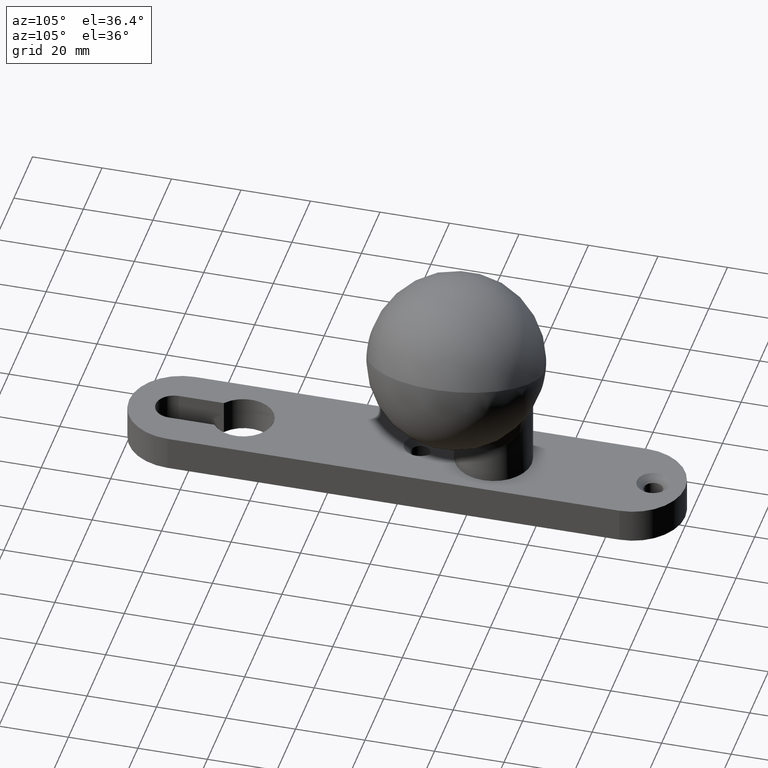
[diagram: clean part render]
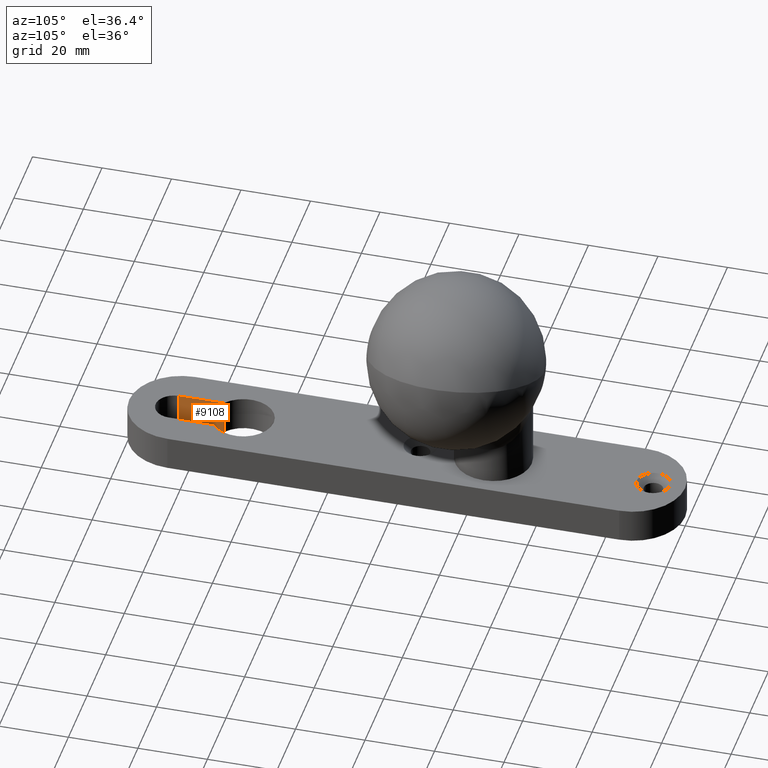
[diagram: same view with one face highlighted and labeled with its STEP entity id]
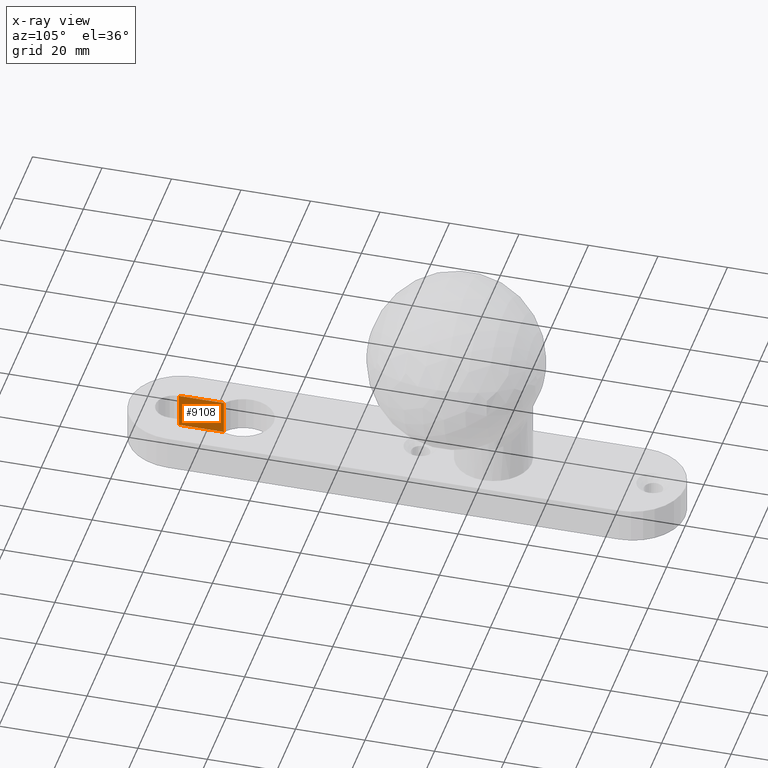
[diagram: x-ray of the same camera — body ghosted, the highlighted face saturated]
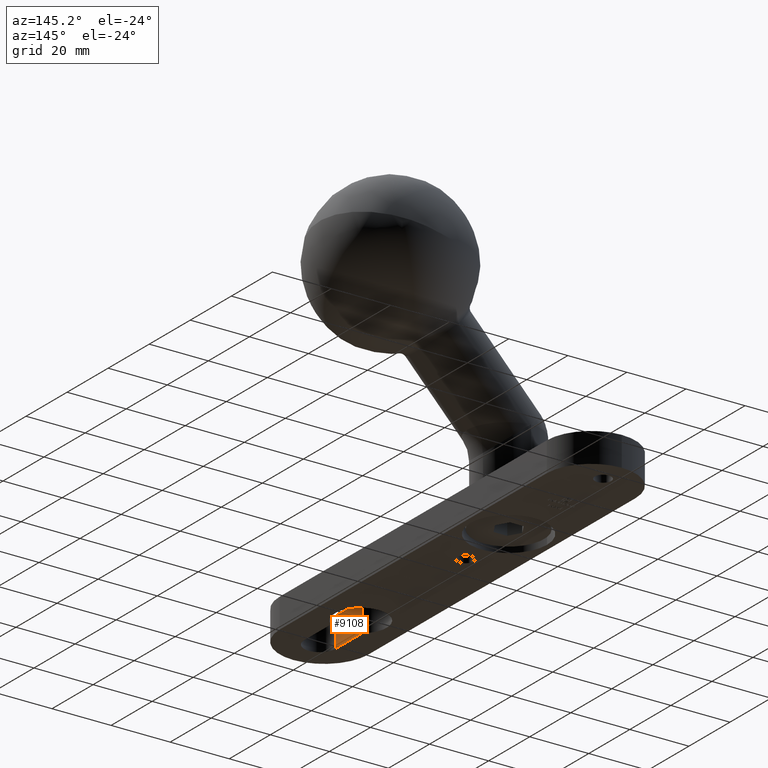
[diagram: same view with one face highlighted and labeled with its STEP entity id]
A machine part, auxiliary view. The second image highlights one B-rep face of the part: STEP entity #9108.
The next image is the same camera in x-ray: the body ghosted, the highlighted face saturated — about 0% of this face is hidden behind the body in this view.
A second angle (auxiliary view) of the same face is appended — the face is thin or edge-on in the first view.
In plain terms, the highlighted planar face has unit normal (-1, 0, 0).
Its self-contained STEP definition (entity closure, byte-faithful):
#1654 = VECTOR ( 'NONE', #10718, 1000.000000000000000 ) ;
#2942 = VERTEX_POINT ( 'NONE', #7236 ) ;
#3397 = CARTESIAN_POINT ( 'NONE',  ( -5.250000000000000000, -67.15000000000003411, -5.000000000000000000 ) ) ;
#3718 = PLANE ( 'NONE',  #4528 ) ;
#4422 = CARTESIAN_POINT ( 'NONE',  ( -5.250000000000000000, -54.15000000000002700, 5.000000000000000000 ) ) ;
#4528 = AXIS2_PLACEMENT_3D ( 'NONE', #9800, #12742, #10788 ) ;
#4548 = ORIENTED_EDGE ( 'NONE', *, *, #8817, .T. ) ;
#4814 = CARTESIAN_POINT ( 'NONE',  ( -5.250000000000000000, -67.15000000000003411, -5.000000000000000000 ) ) ;
#4923 = DIRECTION ( 'NONE',  ( -0.000000000000000000, -1.000000000000000000, -0.000000000000000000 ) ) ;
#5276 = VERTEX_POINT ( 'NONE', #3397 ) ;
#5450 = VECTOR ( 'NONE', #4923, 1000.000000000000000 ) ;
#5752 = DIRECTION ( 'NONE',  ( -0.000000000000000000, -0.000000000000000000, 1.000000000000000000 ) ) ;
#5954 = EDGE_LOOP ( 'NONE', ( #4548, #7937, #9523, #11895 ) ) ;
#6338 = EDGE_CURVE ( 'NONE', #5276, #2942, #12683, .T. ) ;
#7101 = CARTESIAN_POINT ( 'NONE',  ( -5.250000000000000000, -54.15000000000002700, -5.000000000000000000 ) ) ;
#7165 = FACE_OUTER_BOUND ( 'NONE', #5954, .T. ) ;
#7195 = LINE ( 'NONE', #11977, #8892 ) ;
#7236 = CARTESIAN_POINT ( 'NONE',  ( -5.250000000000000000, -67.15000000000003411, 5.000000000000000000 ) ) ;
#7334 = VERTEX_POINT ( 'NONE', #4422 ) ;
#7343 = LINE ( 'NONE', #9723, #1654 ) ;
#7413 = EDGE_CURVE ( 'NONE', #12306, #7334, #7343, .T. ) ;
#7496 = EDGE_CURVE ( 'NONE', #12306, #5276, #7195, .T. ) ;
#7937 = ORIENTED_EDGE ( 'NONE', *, *, #6338, .F. ) ;
#7990 = CARTESIAN_POINT ( 'NONE',  ( -5.250000000000000000, -67.15000000000003411, 5.000000000000000000 ) ) ;
#8817 = EDGE_CURVE ( 'NONE', #7334, #2942, #11346, .T. ) ;
#8892 = VECTOR ( 'NONE', #11892, 1000.000000000000000 ) ;
#9108 = ADVANCED_FACE ( 'NONE', ( #7165 ), #3718, .F. ) ;
#9523 = ORIENTED_EDGE ( 'NONE', *, *, #7496, .F. ) ;
#9723 = CARTESIAN_POINT ( 'NONE',  ( -5.250000000000000000, -54.15000000000002700, -5.000000000000000000 ) ) ;
#9800 = CARTESIAN_POINT ( 'NONE',  ( -5.250000000000000000, -67.15000000000003411, -5.000000000000000000 ) ) ;
#10718 = DIRECTION ( 'NONE',  ( -0.000000000000000000, -0.000000000000000000, 1.000000000000000000 ) ) ;
#10788 = DIRECTION ( 'NONE',  ( 0.000000000000000000, 0.000000000000000000, 1.000000000000000000 ) ) ;
#11346 = LINE ( 'NONE', #7990, #5450 ) ;
#11892 = DIRECTION ( 'NONE',  ( -0.000000000000000000, -1.000000000000000000, -0.000000000000000000 ) ) ;
#11895 = ORIENTED_EDGE ( 'NONE', *, *, #7413, .T. ) ;
#11977 = CARTESIAN_POINT ( 'NONE',  ( -5.250000000000000000, -67.15000000000003411, -5.000000000000000000 ) ) ;
#12306 = VERTEX_POINT ( 'NONE', #7101 ) ;
#12370 = VECTOR ( 'NONE', #5752, 1000.000000000000000 ) ;
#12683 = LINE ( 'NONE', #4814, #12370 ) ;
#12742 = DIRECTION ( 'NONE',  ( -1.000000000000000000, 0.000000000000000000, 0.000000000000000000 ) ) ;